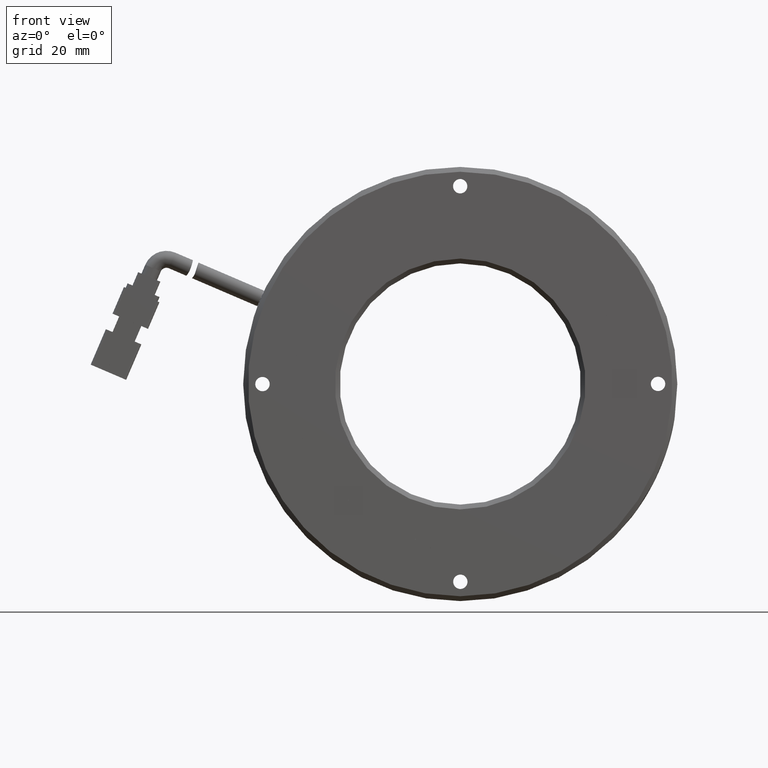
[diagram: clean part render]
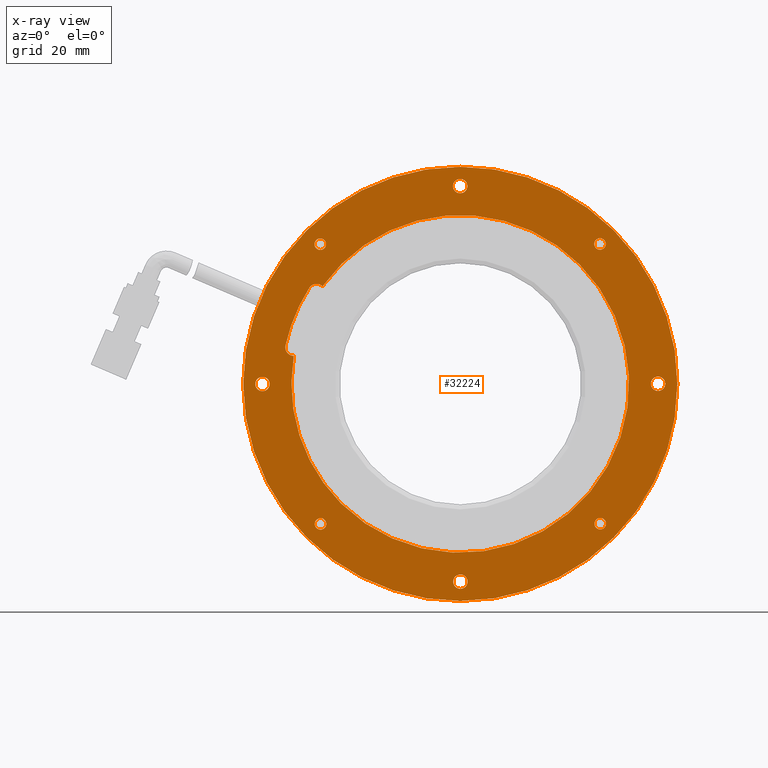
[diagram: x-ray — body ghosted, one internal face saturated and labeled with its STEP entity id]
A machine part, front view, then the same camera in x-ray: the body is ghosted and one INTERNAL B-rep face — a face not visible from any outside direction — is saturated and labeled: STEP entity #32224.
In plain terms, the highlighted planar face has unit normal (-0, 1, -0).
Its self-contained STEP definition (entity closure, byte-faithful):
#284 = CIRCLE ( 'NONE', #28466, 35.00000000000000000 ) ;
#414 = CARTESIAN_POINT ( 'NONE',  ( 28.29975438340582600, 5.623552123552125100, 24.76913205053215700 ) ) ;
#500 = CARTESIAN_POINT ( 'NONE',  ( 4.665014794452143400, 5.623552123552122400, -39.93845183638028800 ) ) ;
#615 = AXIS2_PLACEMENT_3D ( 'NONE', #974, #22882, #4140 ) ;
#768 = AXIS2_PLACEMENT_3D ( 'NONE', #1069, #22985, #4227 ) ;
#930 = ORIENTED_EDGE ( 'NONE', *, *, #37618, .F. ) ;
#974 = CARTESIAN_POINT ( 'NONE',  ( 3.571428571428565800, 5.623552123552121500, 0.0000000000000000000 ) ) ;
#1069 = CARTESIAN_POINT ( 'NONE',  ( 44.57141463854593900, 5.623552123552126900, 0.03380083108184966900 ) ) ;
#1232 = DIRECTION ( 'NONE',  ( -0.7065235946279192500, 0.0000000000000000000, -0.7076894871580640100 ) ) ;
#1374 = CARTESIAN_POINT ( 'NONE',  ( -24.54821049476272100, 5.623552123552118900, -28.16604158889084900 ) ) ;
#1824 = CARTESIAN_POINT ( 'NONE',  ( 31.73886923135559000, 5.623552123552124200, -29.81669476433446800 ) ) ;
#1828 = CIRCLE ( 'NONE', #34100, 1.499999999999996700 ) ;
#2003 = CARTESIAN_POINT ( 'NONE',  ( 3.605229402510262900, 5.623552123552122400, -40.99998606711737600 ) ) ;
#2225 = CARTESIAN_POINT ( 'NONE',  ( 3.571428571428565800, 5.623552123552121500, 0.0000000000000000000 ) ) ;
#2348 = FACE_BOUND ( 'NONE', #4960, .T. ) ;
#2439 = AXIS2_PLACEMENT_3D ( 'NONE', #25410, #6627, #28650 ) ;
#2468 = AXIS2_PLACEMENT_3D ( 'NONE', #10911, #32912, #14035 ) ;
#2575 = VERTEX_POINT ( 'NONE', #1374 ) ;
#2689 = DIRECTION ( 'NONE',  ( -1.163897087407499700E-016, 1.000000000000000000, -2.939373556709199600E-017 ) ) ;
#2859 = ORIENTED_EDGE ( 'NONE', *, *, #22937, .T. ) ;
#3023 = VERTEX_POINT ( 'NONE', #39126 ) ;
#3312 = FACE_BOUND ( 'NONE', #9435, .T. ) ;
#3448 = CARTESIAN_POINT ( 'NONE',  ( 3.571428571428565800, 5.623552123552121500, 0.0000000000000000000 ) ) ;
#3518 = AXIS2_PLACEMENT_3D ( 'NONE', #2225, #24163, #5373 ) ;
#3520 = AXIS2_PLACEMENT_3D ( 'NONE', #2003, #23923, #5139 ) ;
#3552 = EDGE_CURVE ( 'NONE', #34205, #2575, #26320, .T. ) ;
#3569 = EDGE_CURVE ( 'NONE', #14091, #3023, #34697, .T. ) ;
#4096 = ORIENTED_EDGE ( 'NONE', *, *, #8784, .F. ) ;
#4115 = EDGE_CURVE ( 'NONE', #35869, #16614, #4611, .T. ) ;
#4140 = DIRECTION ( 'NONE',  ( 0.7065235946279230200, 9.912705577010326800E-017, 0.7076894871580603500 ) ) ;
#4165 = AXIS2_PLACEMENT_3D ( 'NONE', #10631, #32651, #13778 ) ;
#4227 = DIRECTION ( 'NONE',  ( -0.7065235946279235800, 0.0000000000000000000, -0.7076894871580596800 ) ) ;
#4568 = DIRECTION ( 'NONE',  ( 1.163897087407499700E-016, -1.000000000000000000, 2.939373556709199600E-017 ) ) ;
#4611 = CIRCLE ( 'NONE', #31306, 1.199999999999998800 ) ;
#4664 = CARTESIAN_POINT ( 'NONE',  ( -25.39603880831622700, 5.623552123552118900, -29.01526897348052400 ) ) ;
#4772 = CIRCLE ( 'NONE', #10756, 1.499999999999990500 ) ;
#4847 = VERTEX_POINT ( 'NONE', #500 ) ;
#4960 = EDGE_LOOP ( 'NONE', ( #39146, #38859 ) ) ;
#5139 = DIRECTION ( 'NONE',  ( -0.7065235946279202500, 0.0000000000000000000, -0.7076894871580629000 ) ) ;
#5221 = CIRCLE ( 'NONE', #768, 1.499999999999995600 ) ;
#5373 = DIRECTION ( 'NONE',  ( 0.7065235946279216900, 9.637352644315595200E-017, 0.7076894871580614600 ) ) ;
#5393 = ORIENTED_EDGE ( 'NONE', *, *, #3569, .F. ) ;
#5716 = CARTESIAN_POINT ( 'NONE',  ( 3.571428571428565800, 5.623552123552121500, 0.0000000000000000000 ) ) ;
#6039 = ORIENTED_EDGE ( 'NONE', *, *, #32726, .T. ) ;
#6184 = DIRECTION ( 'NONE',  ( -1.163897087407499700E-016, 1.000000000000000000, -2.939373556709199600E-017 ) ) ;
#6593 = DIRECTION ( 'NONE',  ( -0.7076894871580615700, -7.013706776186549800E-017, 0.7065235946279216900 ) ) ;
#6627 = DIRECTION ( 'NONE',  ( 1.163897087407499700E-016, -1.000000000000000000, 2.939373556709199600E-017 ) ) ;
#6634 = VERTEX_POINT ( 'NONE', #28143 ) ;
#6713 = EDGE_LOOP ( 'NONE', ( #17084, #11624 ) ) ;
#6751 = VERTEX_POINT ( 'NONE', #6951 ) ;
#6951 = CARTESIAN_POINT ( 'NONE',  ( 35.36499032968504300, 5.623552123552126000, 31.84602692211276700 ) ) ;
#7039 = CARTESIAN_POINT ( 'NONE',  ( -27.48975675269276700, 5.623552123552118900, 20.21386808221996000 ) ) ;
#7177 = EDGE_CURVE ( 'NONE', #6751, #11724, #16588, .T. ) ;
#7787 = DIRECTION ( 'NONE',  ( 0.7065235946279211400, 0.0000000000000000000, 0.7076894871580620100 ) ) ;
#7872 = ORIENTED_EDGE ( 'NONE', *, *, #4115, .F. ) ;
#7884 = CARTESIAN_POINT ( 'NONE',  ( -26.21591567580825500, 5.623552123552118900, 18.94212561188970100 ) ) ;
#8348 = ORIENTED_EDGE ( 'NONE', *, *, #11042, .T. ) ;
#8640 = DIRECTION ( 'NONE',  ( 1.163897087407499700E-016, -1.000000000000000000, 2.939373556709199600E-017 ) ) ;
#8784 = EDGE_CURVE ( 'NONE', #15195, #39504, #284, .T. ) ;
#8818 = ORIENTED_EDGE ( 'NONE', *, *, #20721, .F. ) ;
#8863 = DIRECTION ( 'NONE',  ( 0.7065235946279216900, 9.912705577010326800E-017, 0.7076894871580616800 ) ) ;
#8887 = CARTESIAN_POINT ( 'NONE',  ( 3.537627740346577500, 5.623552123552124200, 40.99998606711736900 ) ) ;
#8992 = ORIENTED_EDGE ( 'NONE', *, *, #30455, .T. ) ;
#9147 = AXIS2_PLACEMENT_3D ( 'NONE', #10498, #19934, #19963 ) ;
#9435 = EDGE_LOOP ( 'NONE', ( #29165, #37925, #4096, #930, #8818, #30278, #5393 ) ) ;
#9503 = VERTEX_POINT ( 'NONE', #31630 ) ;
#9646 = FACE_BOUND ( 'NONE', #32004, .T. ) ;
#9822 = VERTEX_POINT ( 'NONE', #14080 ) ;
#10498 = CARTESIAN_POINT ( 'NONE',  ( -26.21591567580825500, 5.623552123552118900, 18.94212561188970100 ) ) ;
#10631 = CARTESIAN_POINT ( 'NONE',  ( -30.89810752718073800, 5.623552123552117100, 7.611903910761753900 ) ) ;
#10673 = FACE_BOUND ( 'NONE', #10839, .T. ) ;
#10682 = DIRECTION ( 'NONE',  ( -1.163897087407499700E-016, 1.000000000000000000, -2.939373556709199600E-017 ) ) ;
#10756 = AXIS2_PLACEMENT_3D ( 'NONE', #21448, #2689, #24622 ) ;
#10839 = EDGE_LOOP ( 'NONE', ( #24005, #33872 ) ) ;
#10911 = CARTESIAN_POINT ( 'NONE',  ( 44.57141463854593900, 5.623552123552126900, 0.03380083108184966900 ) ) ;
#11035 = DIRECTION ( 'NONE',  ( -0.7076894871580611300, 0.0000000000000000000, 0.7065235946279221400 ) ) ;
#11042 = EDGE_CURVE ( 'NONE', #21022, #22318, #12342, .T. ) ;
#11124 = AXIS2_PLACEMENT_3D ( 'NONE', #24962, #6184, #28189 ) ;
#11199 = CARTESIAN_POINT ( 'NONE',  ( -21.15689724054869500, 5.623552123552118000, -24.76913205053216100 ) ) ;
#11352 = CIRCLE ( 'NONE', #23233, 1.499999999999994400 ) ;
#11459 = CARTESIAN_POINT ( 'NONE',  ( -32.65576092597669300, 5.623552123552117100, 8.000046319809095900 ) ) ;
#11547 = EDGE_CURVE ( 'NONE', #11724, #6751, #23575, .T. ) ;
#11624 = ORIENTED_EDGE ( 'NONE', *, *, #11547, .F. ) ;
#11724 = VERTEX_POINT ( 'NONE', #34369 ) ;
#12023 = DIRECTION ( 'NONE',  ( -0.7065235946279202500, 0.0000000000000000000, -0.7076894871580629000 ) ) ;
#12342 = CIRCLE ( 'NONE', #2468, 1.499999999999994900 ) ;
#12458 = DIRECTION ( 'NONE',  ( 1.163897087407499700E-016, -1.000000000000000000, 2.939373556709199600E-017 ) ) ;
#12966 = VERTEX_POINT ( 'NONE', #23980 ) ;
#13117 = AXIS2_PLACEMENT_3D ( 'NONE', #35624, #16719, #38790 ) ;
#13778 = DIRECTION ( 'NONE',  ( -0.7076894871580605700, 0.0000000000000000000, 0.7065235946279225800 ) ) ;
#14035 = DIRECTION ( 'NONE',  ( -0.7065235946279239100, 0.0000000000000000000, -0.7076894871580593500 ) ) ;
#14080 = CARTESIAN_POINT ( 'NONE',  ( -26.29166871560546100, 5.623552123552118900, 28.11823999515511500 ) ) ;
#14091 = VERTEX_POINT ( 'NONE', #7039 ) ;
#14417 = EDGE_LOOP ( 'NONE', ( #6039, #30046 ) ) ;
#14625 = EDGE_CURVE ( 'NONE', #12966, #9822, #39241, .T. ) ;
#15195 = VERTEX_POINT ( 'NONE', #11199 ) ;
#15214 = ORIENTED_EDGE ( 'NONE', *, *, #36080, .F. ) ;
#15242 = CARTESIAN_POINT ( 'NONE',  ( -36.36877210374692700, 5.623552123552118000, 1.027733399655528000 ) ) ;
#15644 = ORIENTED_EDGE ( 'NONE', *, *, #24829, .T. ) ;
#15867 = AXIS2_PLACEMENT_3D ( 'NONE', #35587, #16676, #38749 ) ;
#16129 = CIRCLE ( 'NONE', #31621, 1.199999999999998800 ) ;
#16445 = CARTESIAN_POINT ( 'NONE',  ( 32.53889595117335900, 5.623552123552124200, 29.01526897348052700 ) ) ;
#16518 = DIRECTION ( 'NONE',  ( 1.163897087407499700E-016, -1.000000000000000000, 2.939373556709199600E-017 ) ) ;
#16588 = CIRCLE ( 'NONE', #28119, 45.00000000000000000 ) ;
#16614 = VERTEX_POINT ( 'NONE', #30249 ) ;
#16676 = DIRECTION ( 'NONE',  ( -1.163897087407499700E-016, 1.000000000000000000, -2.939373556709199600E-017 ) ) ;
#16719 = DIRECTION ( 'NONE',  ( 1.163897087407499700E-016, -1.000000000000000000, 2.939373556709199600E-017 ) ) ;
#16971 = CARTESIAN_POINT ( 'NONE',  ( -38.48834288763067900, 5.623552123552118000, -1.095335061818644200 ) ) ;
#16995 = DIRECTION ( 'NONE',  ( 1.163897087407499700E-016, -1.000000000000000000, 2.939373556709199600E-017 ) ) ;
#17010 = EDGE_CURVE ( 'NONE', #20204, #29573, #35334, .T. ) ;
#17084 = ORIENTED_EDGE ( 'NONE', *, *, #7177, .F. ) ;
#17094 = CIRCLE ( 'NONE', #2439, 1.200000000000001300 ) ;
#17663 = CIRCLE ( 'NONE', #18302, 37.10000000000000900 ) ;
#17833 = CARTESIAN_POINT ( 'NONE',  ( 2.545444010568383800, 5.623552123552122400, -42.06152029785446400 ) ) ;
#17896 = CARTESIAN_POINT ( 'NONE',  ( 3.605229402510262900, 5.623552123552122400, -40.99998606711737600 ) ) ;
#17998 = FACE_BOUND ( 'NONE', #19727, .T. ) ;
#18210 = VERTEX_POINT ( 'NONE', #1824 ) ;
#18302 = AXIS2_PLACEMENT_3D ( 'NONE', #3448, #25373, #6593 ) ;
#18378 = DIRECTION ( 'NONE',  ( 1.163897087407499700E-016, -1.000000000000000000, 2.939373556709199600E-017 ) ) ;
#18872 = VERTEX_POINT ( 'NONE', #40566 ) ;
#18992 = FACE_OUTER_BOUND ( 'NONE', #6713, .T. ) ;
#19381 = DIRECTION ( 'NONE',  ( 0.7065235946279225800, 0.0000000000000000000, 0.7076894871580605700 ) ) ;
#19624 = AXIS2_PLACEMENT_3D ( 'NONE', #35916, #16995, #39090 ) ;
#19727 = EDGE_LOOP ( 'NONE', ( #38938, #2859 ) ) ;
#19934 = DIRECTION ( 'NONE',  ( 1.163897087407499700E-016, -1.000000000000000000, 2.939373556709199000E-017 ) ) ;
#19963 = DIRECTION ( 'NONE',  ( -0.7076894871580611300, 0.0000000000000000000, 0.7065235946279221400 ) ) ;
#19996 = DIRECTION ( 'NONE',  ( -1.163897087407499700E-016, 1.000000000000000000, -2.939373556709199600E-017 ) ) ;
#20000 = FACE_BOUND ( 'NONE', #23617, .T. ) ;
#20204 = VERTEX_POINT ( 'NONE', #16971 ) ;
#20446 = AXIS2_PLACEMENT_3D ( 'NONE', #23324, #4568, #26511 ) ;
#20539 = ORIENTED_EDGE ( 'NONE', *, *, #26261, .F. ) ;
#20614 = ORIENTED_EDGE ( 'NONE', *, *, #17010, .T. ) ;
#20617 = CARTESIAN_POINT ( 'NONE',  ( -25.39603880831622700, 5.623552123552118900, -29.01526897348052400 ) ) ;
#20721 = EDGE_CURVE ( 'NONE', #28965, #26976, #34399, .T. ) ;
#20810 = EDGE_LOOP ( 'NONE', ( #15214, #28665 ) ) ;
#21022 = VERTEX_POINT ( 'NONE', #32276 ) ;
#21080 = DIRECTION ( 'NONE',  ( -0.7065235946279192500, 0.0000000000000000000, -0.7076894871580640100 ) ) ;
#21448 = CARTESIAN_POINT ( 'NONE',  ( -37.42855749568880700, 5.623552123552118000, -0.03380083108155823600 ) ) ;
#21521 = AXIS2_PLACEMENT_3D ( 'NONE', #7884, #29906, #11035 ) ;
#21669 = PLANE ( 'NONE',  #11124 ) ;
#22318 = VERTEX_POINT ( 'NONE', #39093 ) ;
#22528 = CIRCLE ( 'NONE', #19624, 1.199999999999998800 ) ;
#22732 = EDGE_CURVE ( 'NONE', #9503, #29035, #29129, .T. ) ;
#22880 = CIRCLE ( 'NONE', #38026, 1.199999999999998800 ) ;
#22882 = DIRECTION ( 'NONE',  ( 1.163897087407499700E-016, -1.000000000000000000, 2.939373556709199600E-017 ) ) ;
#22937 = EDGE_CURVE ( 'NONE', #4847, #30920, #11352, .T. ) ;
#22985 = DIRECTION ( 'NONE',  ( -1.163897087407499700E-016, 1.000000000000000000, -2.939373556709199600E-017 ) ) ;
#23233 = AXIS2_PLACEMENT_3D ( 'NONE', #17896, #40011, #21080 ) ;
#23306 = CIRCLE ( 'NONE', #3520, 1.499999999999996700 ) ;
#23324 = CARTESIAN_POINT ( 'NONE',  ( 3.571428571428565800, 5.623552123552121500, 0.0000000000000000000 ) ) ;
#23575 = CIRCLE ( 'NONE', #3518, 45.00000000000000000 ) ;
#23617 = EDGE_LOOP ( 'NONE', ( #20539, #7872 ) ) ;
#23923 = DIRECTION ( 'NONE',  ( -1.163897087407499700E-016, 1.000000000000000000, -2.939373556709199600E-017 ) ) ;
#23943 = CIRCLE ( 'NONE', #20446, 35.00000000000000000 ) ;
#23980 = CARTESIAN_POINT ( 'NONE',  ( -24.59601208849845100, 5.623552123552118900, 29.81669476433446100 ) ) ;
#24005 = ORIENTED_EDGE ( 'NONE', *, *, #37372, .F. ) ;
#24163 = DIRECTION ( 'NONE',  ( -1.163897087407499700E-016, 1.000000000000000000, -2.939373556709199600E-017 ) ) ;
#24622 = DIRECTION ( 'NONE',  ( -0.7065235946279214700, 0.0000000000000000000, -0.7076894871580617900 ) ) ;
#24829 = EDGE_CURVE ( 'NONE', #22318, #21022, #5221, .T. ) ;
#24962 = CARTESIAN_POINT ( 'NONE',  ( -28.27459835068420100, 5.623552123552118900, 31.79356175825647700 ) ) ;
#25373 = DIRECTION ( 'NONE',  ( 1.163897087407499700E-016, -1.000000000000000000, 2.939373556709199000E-017 ) ) ;
#25388 = EDGE_CURVE ( 'NONE', #6634, #14091, #32227, .T. ) ;
#25410 = CARTESIAN_POINT ( 'NONE',  ( -25.44384040205195800, 5.623552123552118900, 28.96746737974478900 ) ) ;
#25817 = CIRCLE ( 'NONE', #615, 35.00000000000000000 ) ;
#26261 = EDGE_CURVE ( 'NONE', #16614, #35869, #16129, .T. ) ;
#26320 = CIRCLE ( 'NONE', #39529, 1.200000000000001300 ) ;
#26419 = FACE_BOUND ( 'NONE', #40337, .T. ) ;
#26511 = DIRECTION ( 'NONE',  ( 0.7065235946279216900, 9.912705577010326800E-017, 0.7076894871580616800 ) ) ;
#26608 = DIRECTION ( 'NONE',  ( 1.163897087407499700E-016, -1.000000000000000000, 2.939373556709199600E-017 ) ) ;
#26869 = AXIS2_PLACEMENT_3D ( 'NONE', #4664, #26608, #7787 ) ;
#26976 = VERTEX_POINT ( 'NONE', #27837 ) ;
#26985 = DIRECTION ( 'NONE',  ( 0.7065235946279211400, 0.0000000000000000000, 0.7076894871580620100 ) ) ;
#27298 = CARTESIAN_POINT ( 'NONE',  ( 2.477842348404698300, 5.623552123552124200, 39.93845183638028100 ) ) ;
#27372 = EDGE_CURVE ( 'NONE', #30920, #4847, #23306, .T. ) ;
#27423 = FACE_BOUND ( 'NONE', #20810, .T. ) ;
#27485 = CARTESIAN_POINT ( 'NONE',  ( 32.53889595117335900, 5.623552123552124200, 29.01526897348052700 ) ) ;
#27722 = DIRECTION ( 'NONE',  ( 1.163897087407499700E-016, -1.000000000000000000, 2.939373556709199600E-017 ) ) ;
#27837 = CARTESIAN_POINT ( 'NONE',  ( -30.94255977346659500, 5.623552123552117100, 5.812452883976019900 ) ) ;
#28119 = AXIS2_PLACEMENT_3D ( 'NONE', #29567, #10682, #32706 ) ;
#28143 = CARTESIAN_POINT ( 'NONE',  ( -24.97709561632381500, 5.623552123552118900, 20.24800648709194200 ) ) ;
#28189 = DIRECTION ( 'NONE',  ( 0.7065235946279216900, 1.030337130463465200E-016, 0.7076894871580615700 ) ) ;
#28466 = AXIS2_PLACEMENT_3D ( 'NONE', #5716, #27722, #8863 ) ;
#28650 = DIRECTION ( 'NONE',  ( 0.7065235946279225800, 0.0000000000000000000, 0.7076894871580605700 ) ) ;
#28665 = ORIENTED_EDGE ( 'NONE', *, *, #3552, .F. ) ;
#28965 = VERTEX_POINT ( 'NONE', #11459 ) ;
#29035 = VERTEX_POINT ( 'NONE', #27298 ) ;
#29129 = CIRCLE ( 'NONE', #39638, 1.499999999999994400 ) ;
#29165 = ORIENTED_EDGE ( 'NONE', *, *, #25388, .F. ) ;
#29567 = CARTESIAN_POINT ( 'NONE',  ( 3.571428571428565800, 5.623552123552121500, 0.0000000000000000000 ) ) ;
#29573 = VERTEX_POINT ( 'NONE', #15242 ) ;
#29634 = EDGE_CURVE ( 'NONE', #3023, #28965, #17663, .T. ) ;
#29730 = EDGE_CURVE ( 'NONE', #18210, #18872, #22528, .T. ) ;
#29906 = DIRECTION ( 'NONE',  ( 1.163897087407499700E-016, -1.000000000000000000, 2.939373556709199000E-017 ) ) ;
#30046 = ORIENTED_EDGE ( 'NONE', *, *, #22732, .T. ) ;
#30249 = CARTESIAN_POINT ( 'NONE',  ( 33.38672426472686500, 5.623552123552124200, 29.86449635807019800 ) ) ;
#30278 = ORIENTED_EDGE ( 'NONE', *, *, #29634, .F. ) ;
#30455 = EDGE_CURVE ( 'NONE', #29573, #20204, #4772, .T. ) ;
#30644 = DIRECTION ( 'NONE',  ( 0.7065235946279211400, 0.0000000000000000000, 0.7076894871580620100 ) ) ;
#30886 = DIRECTION ( 'NONE',  ( -1.163897087407499700E-016, 1.000000000000000000, -2.939373556709199600E-017 ) ) ;
#30920 = VERTEX_POINT ( 'NONE', #17833 ) ;
#31306 = AXIS2_PLACEMENT_3D ( 'NONE', #16445, #16518, #26985 ) ;
#31315 = CARTESIAN_POINT ( 'NONE',  ( 32.58669754490909300, 5.623552123552124200, -28.96746737974479700 ) ) ;
#31621 = AXIS2_PLACEMENT_3D ( 'NONE', #27485, #8640, #30644 ) ;
#31630 = CARTESIAN_POINT ( 'NONE',  ( 4.597413132288457900, 5.623552123552124200, 42.06152029785445700 ) ) ;
#32004 = EDGE_LOOP ( 'NONE', ( #20614, #8992 ) ) ;
#32224 = ADVANCED_FACE ( 'NONE', ( #3312, #18992, #20000, #10673, #27423, #2348, #34793, #26419, #17998, #9646 ), #21669, .F. ) ;
#32227 = CIRCLE ( 'NONE', #21521, 1.800000000000000500 ) ;
#32276 = CARTESIAN_POINT ( 'NONE',  ( 43.51162924660406600, 5.623552123552126900, -1.027733399655238700 ) ) ;
#32651 = DIRECTION ( 'NONE',  ( 1.163897087407499700E-016, -1.000000000000000000, 2.939373556709199000E-017 ) ) ;
#32706 = DIRECTION ( 'NONE',  ( 0.7065235946279216900, 9.637352644315595200E-017, 0.7076894871580614600 ) ) ;
#32726 = EDGE_CURVE ( 'NONE', #29035, #9503, #1828, .T. ) ;
#32912 = DIRECTION ( 'NONE',  ( -1.163897087407499700E-016, 1.000000000000000000, -2.939373556709199600E-017 ) ) ;
#33872 = ORIENTED_EDGE ( 'NONE', *, *, #29730, .F. ) ;
#34100 = AXIS2_PLACEMENT_3D ( 'NONE', #8887, #30886, #12023 ) ;
#34205 = VERTEX_POINT ( 'NONE', #34470 ) ;
#34369 = CARTESIAN_POINT ( 'NONE',  ( -28.22213318682790400, 5.623552123552117100, -31.84602692211277400 ) ) ;
#34399 = CIRCLE ( 'NONE', #4165, 1.800000000000001800 ) ;
#34470 = CARTESIAN_POINT ( 'NONE',  ( -26.24386712186973000, 5.623552123552118900, -29.86449635807019500 ) ) ;
#34522 = DIRECTION ( 'NONE',  ( 0.7065235946279211400, 0.0000000000000000000, 0.7076894871580620100 ) ) ;
#34611 = CARTESIAN_POINT ( 'NONE',  ( 31.69106763761985600, 5.623552123552124200, 28.16604158889085200 ) ) ;
#34697 = CIRCLE ( 'NONE', #9147, 1.800000000000000500 ) ;
#34793 = FACE_BOUND ( 'NONE', #14417, .T. ) ;
#35334 = CIRCLE ( 'NONE', #15867, 1.499999999999990500 ) ;
#35587 = CARTESIAN_POINT ( 'NONE',  ( -37.42855749568880700, 5.623552123552118000, -0.03380083108155823600 ) ) ;
#35624 = CARTESIAN_POINT ( 'NONE',  ( -25.44384040205195800, 5.623552123552118900, 28.96746737974478900 ) ) ;
#35869 = VERTEX_POINT ( 'NONE', #34611 ) ;
#35916 = CARTESIAN_POINT ( 'NONE',  ( 32.58669754490909300, 5.623552123552124200, -28.96746737974479700 ) ) ;
#36080 = EDGE_CURVE ( 'NONE', #2575, #34205, #38462, .T. ) ;
#36900 = EDGE_CURVE ( 'NONE', #9822, #12966, #17094, .T. ) ;
#37372 = EDGE_CURVE ( 'NONE', #18872, #18210, #22880, .T. ) ;
#37618 = EDGE_CURVE ( 'NONE', #26976, #15195, #25817, .T. ) ;
#37925 = ORIENTED_EDGE ( 'NONE', *, *, #39672, .F. ) ;
#38026 = AXIS2_PLACEMENT_3D ( 'NONE', #31315, #12458, #34522 ) ;
#38462 = CIRCLE ( 'NONE', #26869, 1.199999999999998800 ) ;
#38749 = DIRECTION ( 'NONE',  ( -0.7065235946279214700, 0.0000000000000000000, -0.7076894871580617900 ) ) ;
#38790 = DIRECTION ( 'NONE',  ( 0.7065235946279211400, 0.0000000000000000000, 0.7076894871580620100 ) ) ;
#38859 = ORIENTED_EDGE ( 'NONE', *, *, #36900, .F. ) ;
#38920 = CARTESIAN_POINT ( 'NONE',  ( 3.537627740346577500, 5.623552123552124200, 40.99998606711736900 ) ) ;
#38938 = ORIENTED_EDGE ( 'NONE', *, *, #27372, .T. ) ;
#39090 = DIRECTION ( 'NONE',  ( 0.7065235946279211400, 0.0000000000000000000, 0.7076894871580620100 ) ) ;
#39093 = CARTESIAN_POINT ( 'NONE',  ( 45.63120003048781800, 5.623552123552126900, 1.095335061818939500 ) ) ;
#39126 = CARTESIAN_POINT ( 'NONE',  ( -27.73481708218294300, 5.623552123552118900, 19.90801303685858400 ) ) ;
#39146 = ORIENTED_EDGE ( 'NONE', *, *, #14625, .F. ) ;
#39241 = CIRCLE ( 'NONE', #13117, 1.199999999999998800 ) ;
#39504 = VERTEX_POINT ( 'NONE', #414 ) ;
#39529 = AXIS2_PLACEMENT_3D ( 'NONE', #20617, #18378, #19381 ) ;
#39638 = AXIS2_PLACEMENT_3D ( 'NONE', #38920, #19996, #1232 ) ;
#39672 = EDGE_CURVE ( 'NONE', #39504, #6634, #23943, .T. ) ;
#40011 = DIRECTION ( 'NONE',  ( -1.163897087407499700E-016, 1.000000000000000000, -2.939373556709199600E-017 ) ) ;
#40337 = EDGE_LOOP ( 'NONE', ( #8348, #15644 ) ) ;
#40566 = CARTESIAN_POINT ( 'NONE',  ( 33.43452585846260000, 5.623552123552124200, -28.11823999515512200 ) ) ;